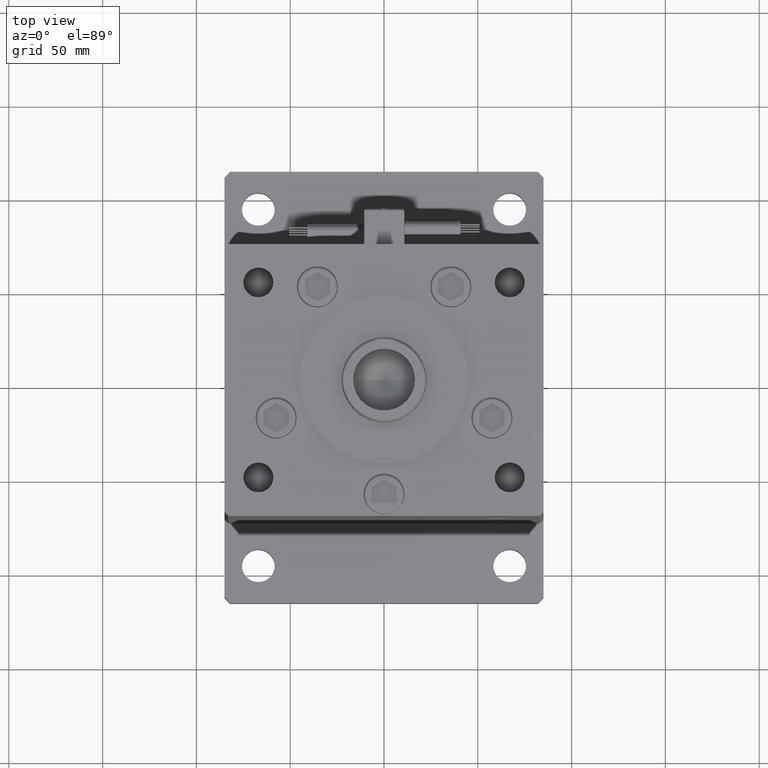
[diagram: clean part render]
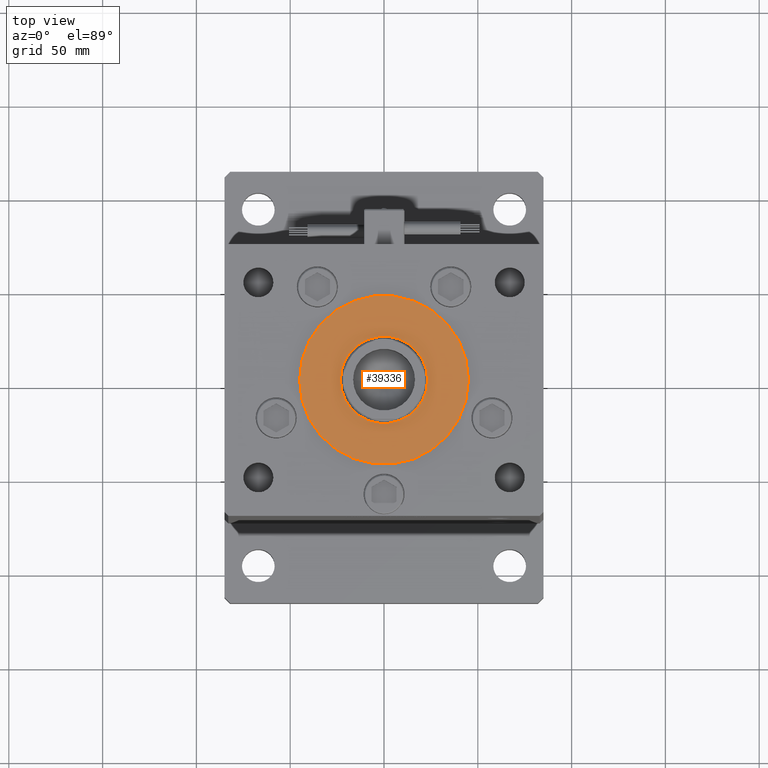
[diagram: same view with one face highlighted and labeled with its STEP entity id]
A machine part, top view. The second image highlights one B-rep face of the part: STEP entity #39336.
In plain terms, the highlighted planar face has unit normal (0, 0, 1).
Its self-contained STEP definition (entity closure, byte-faithful):
#468 = CARTESIAN_POINT ( 'NONE',  ( 0.000000000000000000, -6.938893903907228378E-15, 2.000000000000000000 ) ) ;
#512 = CARTESIAN_POINT ( 'NONE',  ( 0.000000000000000000, -6.938893903907228378E-15, 2.000000000000000000 ) ) ;
#741 = DIRECTION ( 'NONE',  ( 1.000000000000000000, 0.000000000000000000, 0.000000000000000000 ) ) ;
#1360 = DIRECTION ( 'NONE',  ( 1.000000000000000000, 0.000000000000000000, -0.000000000000000000 ) ) ;
#6118 = EDGE_CURVE ( 'NONE', #27171, #9698, #37098, .T. ) ;
#6895 = ORIENTED_EDGE ( 'NONE', *, *, #28868, .F. ) ;
#8709 = CARTESIAN_POINT ( 'NONE',  ( 23.25000000000000000, -6.938893903907228378E-15, 2.000000000000000000 ) ) ;
#8742 = EDGE_LOOP ( 'NONE', ( #10644, #23419 ) ) ;
#8947 = DIRECTION ( 'NONE',  ( 0.000000000000000000, 0.000000000000000000, 1.000000000000000000 ) ) ;
#9698 = VERTEX_POINT ( 'NONE', #27973 ) ;
#10644 = ORIENTED_EDGE ( 'NONE', *, *, #16058, .T. ) ;
#11001 = EDGE_CURVE ( 'NONE', #20365, #20674, #19953, .T. ) ;
#13070 = DIRECTION ( 'NONE',  ( 1.000000000000000000, 0.000000000000000000, 0.000000000000000000 ) ) ;
#14709 = AXIS2_PLACEMENT_3D ( 'NONE', #30886, #8947, #48586 ) ;
#14744 = PLANE ( 'NONE',  #46595 ) ;
#16058 = EDGE_CURVE ( 'NONE', #9698, #27171, #39320, .T. ) ;
#17376 = CARTESIAN_POINT ( 'NONE',  ( 0.000000000000000000, -6.938893903907228378E-15, 2.000000000000000000 ) ) ;
#17589 = EDGE_LOOP ( 'NONE', ( #6895, #34609 ) ) ;
#18141 = CARTESIAN_POINT ( 'NONE',  ( -23.25000000000000000, -4.091590095889632239E-15, 2.000000000000000000 ) ) ;
#18457 = FACE_BOUND ( 'NONE', #17589, .T. ) ;
#18734 = CARTESIAN_POINT ( 'NONE',  ( 0.000000000000000000, -6.938893903907228378E-15, 2.000000000000000000 ) ) ;
#19953 = CIRCLE ( 'NONE', #26354, 23.25000000000000000 ) ;
#20365 = VERTEX_POINT ( 'NONE', #18141 ) ;
#20674 = VERTEX_POINT ( 'NONE', #8709 ) ;
#21089 = DIRECTION ( 'NONE',  ( 1.000000000000000000, 0.000000000000000000, 0.000000000000000000 ) ) ;
#22725 = FACE_OUTER_BOUND ( 'NONE', #8742, .T. ) ;
#22726 = DIRECTION ( 'NONE',  ( 0.000000000000000000, 0.000000000000000000, 1.000000000000000000 ) ) ;
#23419 = ORIENTED_EDGE ( 'NONE', *, *, #6118, .T. ) ;
#26354 = AXIS2_PLACEMENT_3D ( 'NONE', #512, #22726, #13070 ) ;
#27171 = VERTEX_POINT ( 'NONE', #32163 ) ;
#27973 = CARTESIAN_POINT ( 'NONE',  ( -45.00000000000000711, -6.938893903907228378E-15, 2.000000000000000000 ) ) ;
#28868 = EDGE_CURVE ( 'NONE', #20674, #20365, #40911, .T. ) ;
#30886 = CARTESIAN_POINT ( 'NONE',  ( 0.000000000000000000, -6.938893903907228378E-15, 2.000000000000000000 ) ) ;
#32163 = CARTESIAN_POINT ( 'NONE',  ( 45.00000000000000711, -1.427983307744138033E-15, 2.000000000000000000 ) ) ;
#34609 = ORIENTED_EDGE ( 'NONE', *, *, #11001, .F. ) ;
#36701 = DIRECTION ( 'NONE',  ( 0.000000000000000000, 0.000000000000000000, 1.000000000000000000 ) ) ;
#37098 = CIRCLE ( 'NONE', #44397, 45.00000000000000711 ) ;
#39320 = CIRCLE ( 'NONE', #14709, 45.00000000000000711 ) ;
#39336 = ADVANCED_FACE ( 'NONE', ( #18457, #22725 ), #14744, .T. ) ;
#40000 = AXIS2_PLACEMENT_3D ( 'NONE', #468, #48667, #741 ) ;
#40911 = CIRCLE ( 'NONE', #40000, 23.25000000000000000 ) ;
#44397 = AXIS2_PLACEMENT_3D ( 'NONE', #17376, #52181, #21089 ) ;
#46595 = AXIS2_PLACEMENT_3D ( 'NONE', #18734, #36701, #1360 ) ;
#48586 = DIRECTION ( 'NONE',  ( 1.000000000000000000, 0.000000000000000000, 0.000000000000000000 ) ) ;
#48667 = DIRECTION ( 'NONE',  ( 0.000000000000000000, 0.000000000000000000, 1.000000000000000000 ) ) ;
#52181 = DIRECTION ( 'NONE',  ( 0.000000000000000000, 0.000000000000000000, 1.000000000000000000 ) ) ;